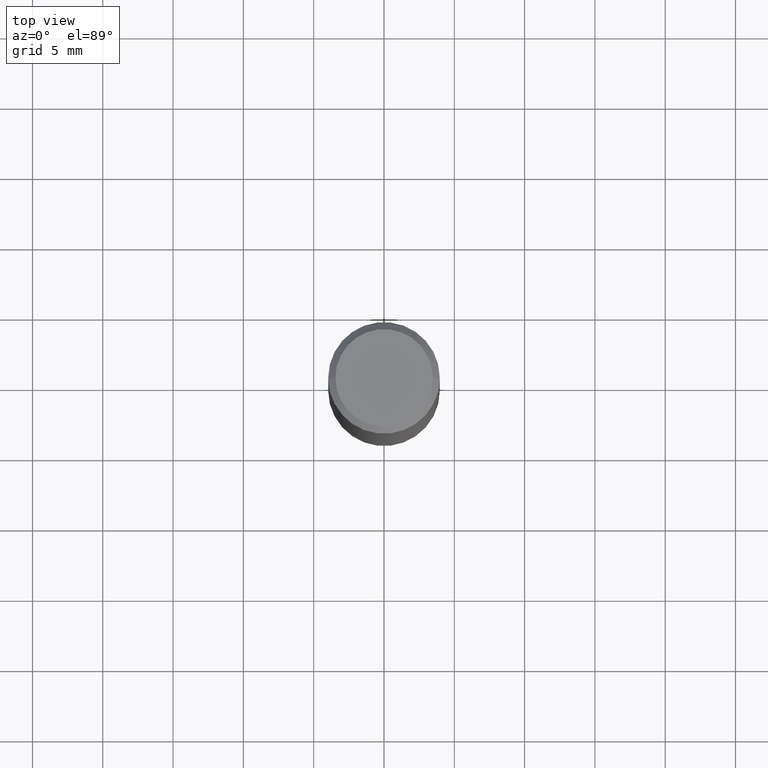
[diagram: clean part render]
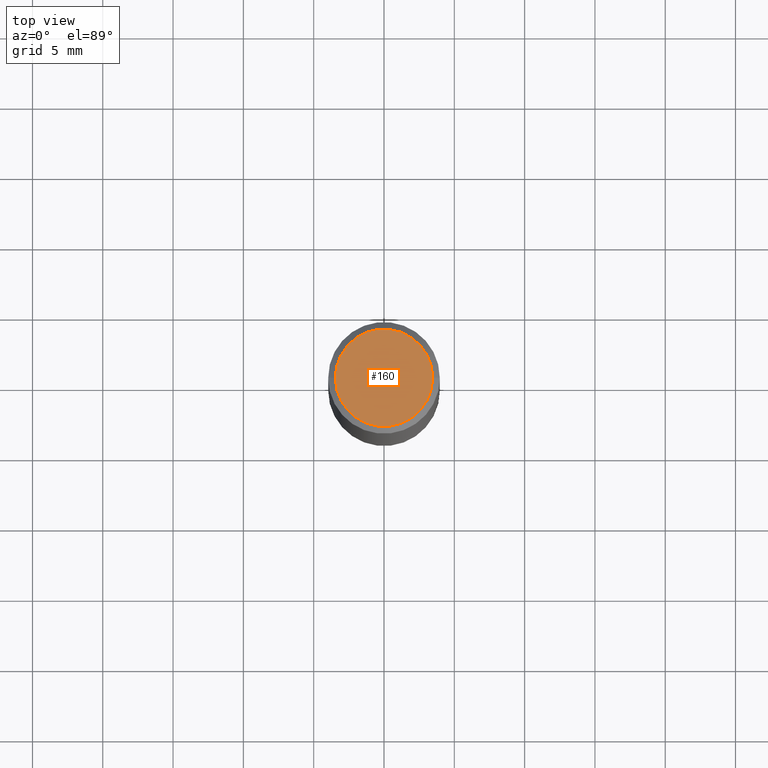
[diagram: same view with one face highlighted and labeled with its STEP entity id]
A machine part, top view. The second image highlights one B-rep face of the part: STEP entity #160.
In plain terms, the highlighted planar face has unit normal (0, -0, -1).
Its self-contained STEP definition (entity closure, byte-faithful):
#13 = ORIENTED_EDGE ( 'NONE', *, *, #330, .T. ) ;
#31 = DIRECTION ( 'NONE',  ( 2.438088387897960049E-29, -3.491481338843145188E-15, -1.000000000000000000 ) ) ;
#76 = AXIS2_PLACEMENT_3D ( 'NONE', #357, #123, #192 ) ;
#92 = VERTEX_POINT ( 'NONE', #139 ) ;
#109 = CARTESIAN_POINT ( 'NONE',  ( -0.1362499999999997324, 9.863434782231834374E-16, -6.775751096333127272E-30 ) ) ;
#123 = DIRECTION ( 'NONE',  ( -2.445468806185136597E-29, 3.491481338843145583E-15, 1.000000000000000000 ) ) ;
#128 = CIRCLE ( 'NONE', #76, 0.1362499999999997324 ) ;
#139 = CARTESIAN_POINT ( 'NONE',  ( 0.1362499999999997324, -1.038262645562516547E-15, 6.957025900226683865E-30 ) ) ;
#158 = DIRECTION ( 'NONE',  ( -2.445468806185136597E-29, 3.491481338843145583E-15, 1.000000000000000000 ) ) ;
#160 = ADVANCED_FACE ( 'NONE', ( #261 ), #211, .F. ) ;
#185 = AXIS2_PLACEMENT_3D ( 'NONE', #302, #158, #354 ) ;
#188 = VERTEX_POINT ( 'NONE', #109 ) ;
#192 = DIRECTION ( 'NONE',  ( 1.000000000000000000, -6.982962677686266711E-15, 4.876176775795936353E-29 ) ) ;
#201 = AXIS2_PLACEMENT_3D ( 'NONE', #339, #31, #313 ) ;
#211 = PLANE ( 'NONE',  #201 ) ;
#256 = ORIENTED_EDGE ( 'NONE', *, *, #322, .T. ) ;
#261 = FACE_OUTER_BOUND ( 'NONE', #265, .T. ) ;
#265 = EDGE_LOOP ( 'NONE', ( #256, #13 ) ) ;
#292 = CIRCLE ( 'NONE', #185, 0.1362499999999997324 ) ;
#302 = CARTESIAN_POINT ( 'NONE',  ( 0.000000000000000000, 0.000000000000000000, 0.000000000000000000 ) ) ;
#313 = DIRECTION ( 'NONE',  ( -1.000000000000000000, 6.982962677686265922E-15, -4.876176775795935793E-29 ) ) ;
#322 = EDGE_CURVE ( 'NONE', #188, #92, #128, .T. ) ;
#330 = EDGE_CURVE ( 'NONE', #92, #188, #292, .T. ) ;
#339 = CARTESIAN_POINT ( 'NONE',  ( 9.514286648347519855E-16, 0.1362499999999997324, -4.757143324173776691E-16 ) ) ;
#354 = DIRECTION ( 'NONE',  ( 1.000000000000000000, -6.982962677686266711E-15, 4.876176775795936353E-29 ) ) ;
#357 = CARTESIAN_POINT ( 'NONE',  ( 0.000000000000000000, 0.000000000000000000, 0.000000000000000000 ) ) ;